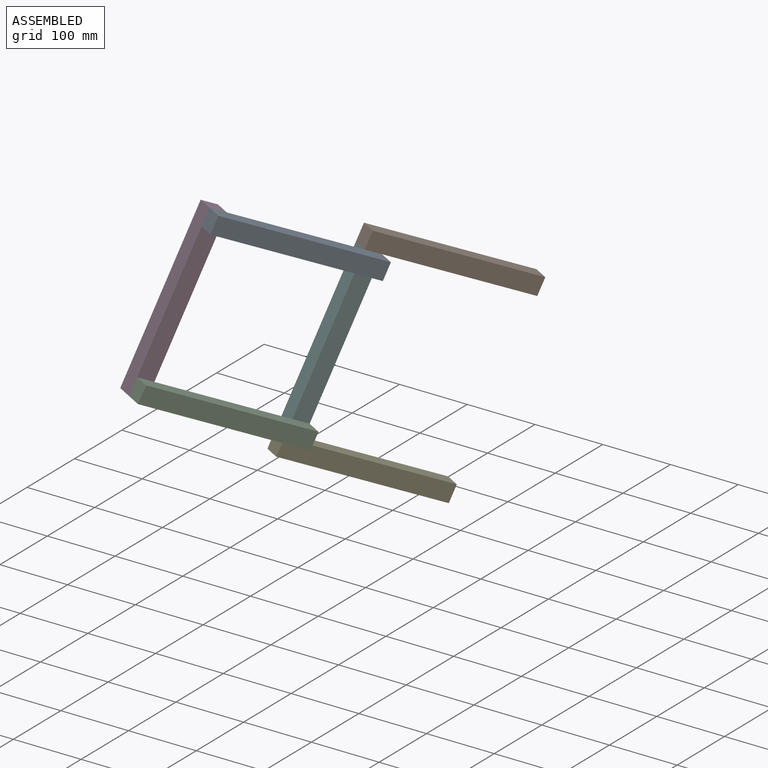
[diagram: assembled view]
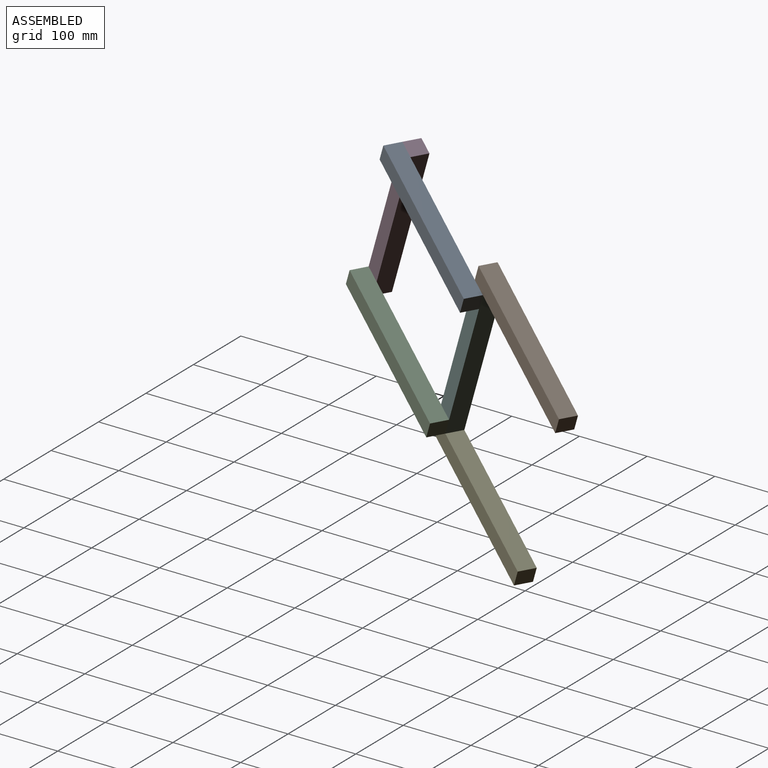
[diagram: assembled view, second angle]
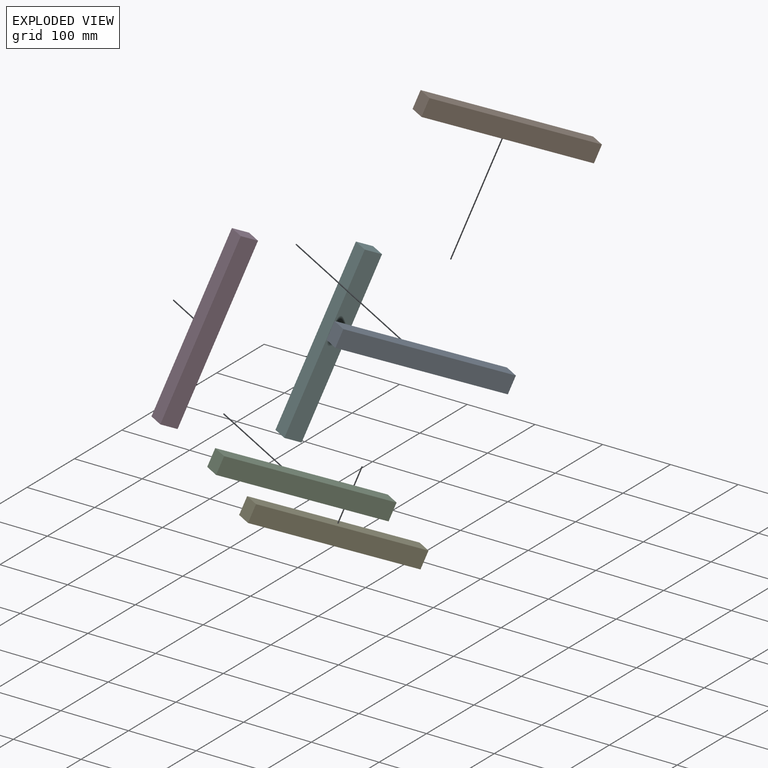
[diagram: exploded view]
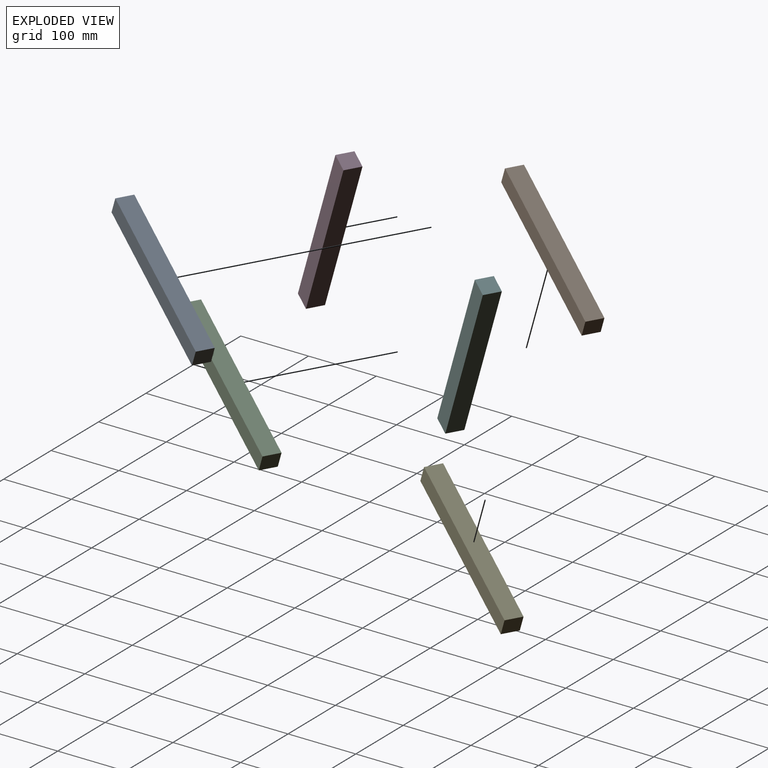
[diagram: exploded view, second angle]
ASSEMBLY  parts=6 mates=6
PART A: 6 faces, bbox 25.4x25.4x254 mm
  f0: plane 25.4x25.4mm, normal (0,0,1), area 645.2mm2, adj f1,f3,f4,f5
  f1: plane 254x25.4mm, normal (-1,0,0), area 6451.6mm2, adj f0,f2,f4,f5
  f2: plane 25.4x25.4mm, normal (0,0,-1), area 645.2mm2, adj f1,f3,f4,f5
  f3: plane 254x25.4mm, normal (1,0,0), area 6451.6mm2, adj f0,f2,f4,f5
  f4: plane 254x25.4mm, normal (0,-1,0), area 6451.6mm2, adj f0,f1,f2,f3
  f5: plane 254x25.4mm, normal (0,1,0), area 6451.6mm2, adj f0,f1,f2,f3
PART B: same geometry as A
PART C: same geometry as A
PART D: same geometry as A
PART E: same geometry as A
PART F: same geometry as A
PLACE A rot(axis=(-0.76,-0.44,-0.48),148.8deg) t=(163.5,5.79,364.05)mm
PLACE B rot(axis=(0.89,-0.24,-0.38),70.9deg) t=(250.46,207.21,290.46)mm
PLACE C rot(axis=(-0.76,-0.44,-0.48),148.8deg) t=(115.19,-77.88,156.87)mm
PLACE D rot(axis=(-0.2,0.35,0.91),64.5deg) t=(65.55,-113.06,308.76)mm
PLACE E rot(axis=(-0.14,-0.53,0.83),154.8deg) t=(191.42,104.95,37.24)mm
PLACE F rot(axis=(-0.2,0.35,0.91),64.5deg) t=(169.14,66.37,212.15)mm
MATE revolute C.f4 <-> F.f4  axis (-0.87,0.5,0) through (155.99,18.18,108.56)mm
MATE revolute F.f0 <-> B.f4  axis (0.21,0.37,0.91) through (195.98,112.85,327.25)mm
MATE revolute E.f4 <-> F.f2  axis (0.21,0.37,0.91) through (142.31,19.89,97.05)mm
MATE revolute A.f4 <-> F.f4  axis (-0.87,0.5,0) through (204.3,101.85,315.74)mm
MATE revolute D.f4 <-> C.f4  axis (0.87,-0.5,0) through (52.4,-161.24,205.17)mm
MATE revolute A.f4 <-> D.f4  axis (-0.87,0.5,0) through (100.7,-77.57,412.35)mm
